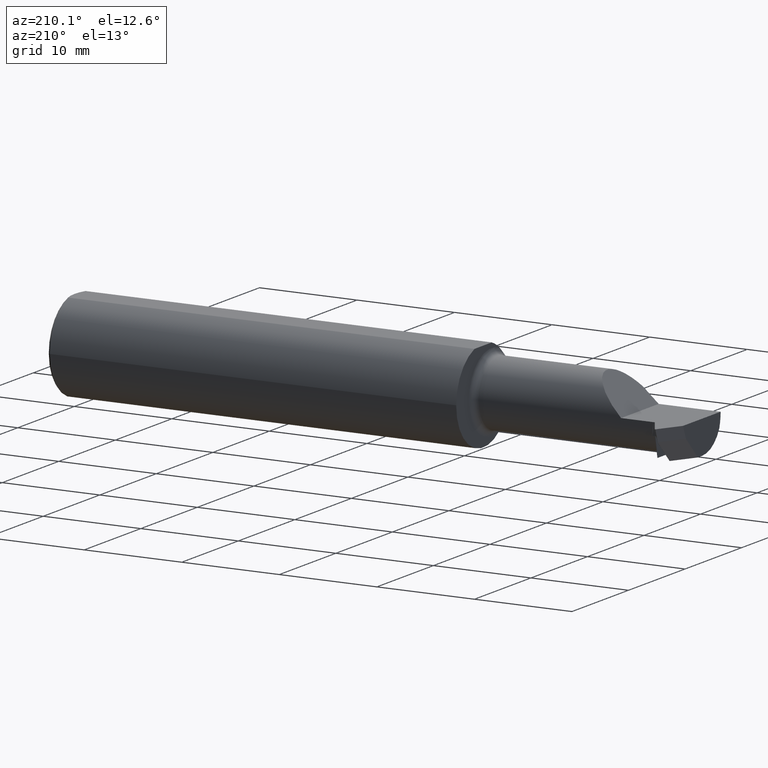
[diagram: clean part render]
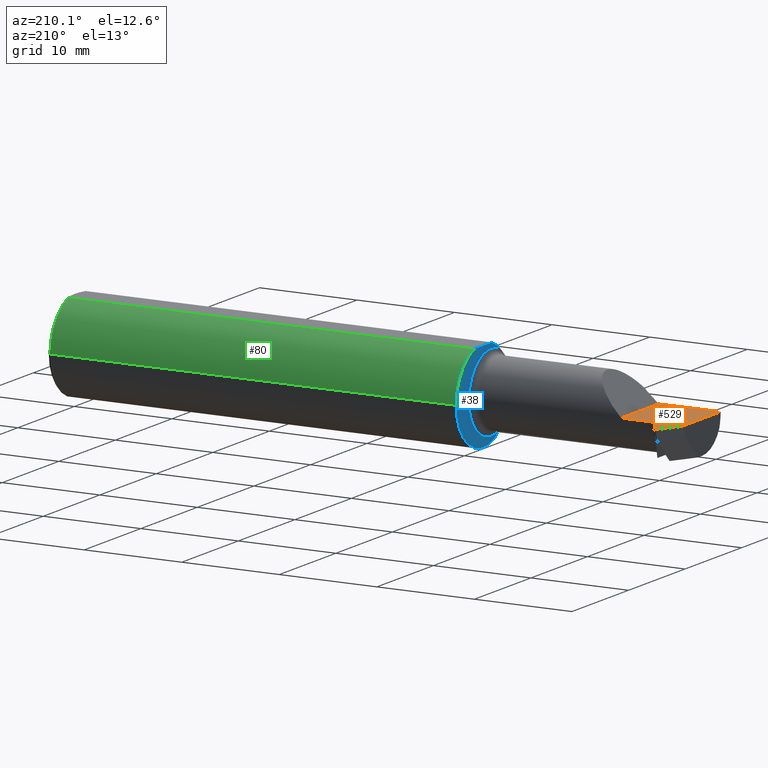
[diagram: same view with three faces highlighted in distinct colors, each labeled with its STEP entity id]
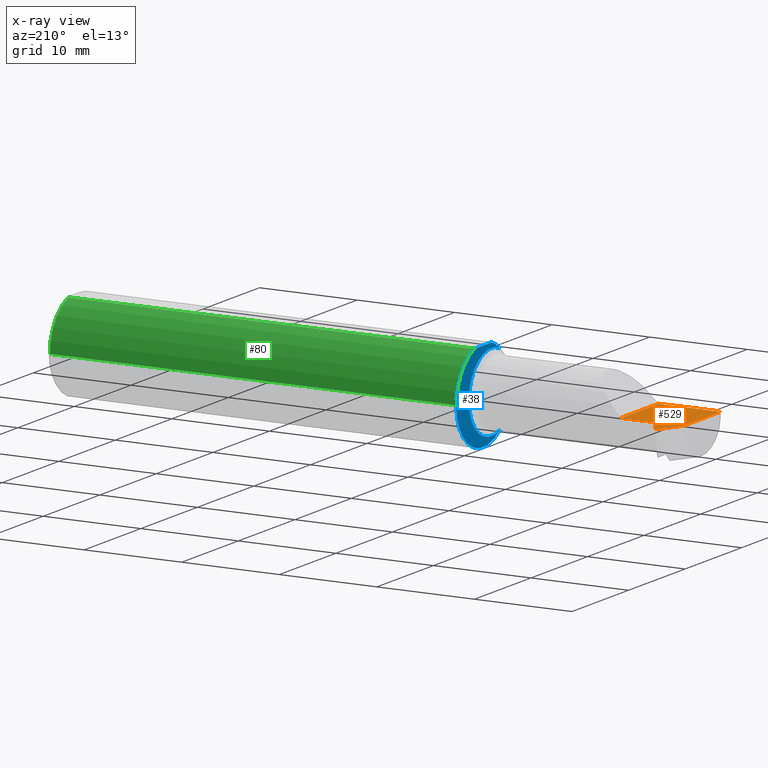
[diagram: x-ray of the same camera — body ghosted, the three highlighted faces saturated]
A machine part, auxiliary view with three faces highlighted in distinct colors.
The next image is the same camera in x-ray (body ghosted, the three faces saturated) — at least one of them is partly hidden behind the body in this view.
Their STEP definitions:

[orange] entity #529 — the highlighted planar face has unit normal (0, 0, -1).
#6 = EDGE_CURVE ( 'NONE', #163, #86, #373, .T. ) ;
#47 = ORIENTED_EDGE ( 'NONE', *, *, #548, .T. ) ;
#61 = VERTEX_POINT ( 'NONE', #576 ) ;
#73 = CARTESIAN_POINT ( 'NONE',  ( -2.500000000000000000, 0.07452118017992460930, 0.000000000000000000 ) ) ;
#86 = VERTEX_POINT ( 'NONE', #248 ) ;
#105 = LINE ( 'NONE', #642, #839 ) ;
#113 = CARTESIAN_POINT ( 'NONE',  ( -2.500000000000000000, -0.1873499999999998500, 0.000000000000000000 ) ) ;
#116 = DIRECTION ( 'NONE',  ( 1.000000000000000000, -9.108622265535208572E-17, 0.000000000000000000 ) ) ;
#129 = CARTESIAN_POINT ( 'NONE',  ( -2.386074374157794775, 0.07464999999999998026, 0.000000000000000000 ) ) ;
#143 = LINE ( 'NONE', #233, #768 ) ;
#154 = DIRECTION ( 'NONE',  ( 0.000000000000000000, 0.000000000000000000, -1.000000000000000000 ) ) ;
#163 = VERTEX_POINT ( 'NONE', #192 ) ;
#185 = ORIENTED_EDGE ( 'NONE', *, *, #211, .F. ) ;
#192 = CARTESIAN_POINT ( 'NONE',  ( -2.500000000000000000, -0.1873499999999998777, 0.000000000000000000 ) ) ;
#196 = DIRECTION ( 'NONE',  ( 0.5000000000000034417, -0.8660254037844365982, 0.000000000000000000 ) ) ;
#211 = EDGE_CURVE ( 'NONE', #344, #269, #545, .T. ) ;
#223 = FACE_OUTER_BOUND ( 'NONE', #552, .T. ) ;
#233 = CARTESIAN_POINT ( 'NONE',  ( -5.098311318176956023E-16, 0.07465000000001625891, 0.000000000000000000 ) ) ;
#235 = DIRECTION ( 'NONE',  ( 1.224646799147352961E-16, -1.000000000000000000, 0.000000000000000000 ) ) ;
#248 = CARTESIAN_POINT ( 'NONE',  ( -2.250000000000000000, -0.1873499999999998222, 0.000000000000000000 ) ) ;
#267 = CARTESIAN_POINT ( 'NONE',  ( -1.757231382422083765, -1.014538011669857687, 0.000000000000000000 ) ) ;
#269 = VERTEX_POINT ( 'NONE', #414 ) ;
#276 = VECTOR ( 'NONE', #865, 39.37007874015748143 ) ;
#281 = VECTOR ( 'NONE', #235, 39.37007874015748143 ) ;
#285 = ORIENTED_EDGE ( 'NONE', *, *, #426, .F. ) ;
#307 = VECTOR ( 'NONE', #196, 39.37007874015748143 ) ;
#344 = VERTEX_POINT ( 'NONE', #73 ) ;
#356 = EDGE_CURVE ( 'NONE', #86, #828, #615, .T. ) ;
#363 = EDGE_CURVE ( 'NONE', #471, #828, #609, .T. ) ;
#372 = LINE ( 'NONE', #846, #281 ) ;
#373 = LINE ( 'NONE', #113, #703 ) ;
#395 = DIRECTION ( 'NONE',  ( 1.000000000000000000, -9.108622265535208572E-17, 0.000000000000000000 ) ) ;
#414 = CARTESIAN_POINT ( 'NONE',  ( -2.444500000000000117, 0.1706500000000001349, 0.000000000000000000 ) ) ;
#415 = CARTESIAN_POINT ( 'NONE',  ( -2.500000000000000000, 0.07465000000000017455, 0.000000000000000000 ) ) ;
#425 = VECTOR ( 'NONE', #464, 39.37007874015748143 ) ;
#426 = EDGE_CURVE ( 'NONE', #725, #471, #143, .T. ) ;
#433 = ORIENTED_EDGE ( 'NONE', *, *, #363, .F. ) ;
#460 = ORIENTED_EDGE ( 'NONE', *, *, #834, .F. ) ;
#464 = DIRECTION ( 'NONE',  ( -0.000000000000000000, 1.000000000000000000, -0.000000000000000000 ) ) ;
#471 = VERTEX_POINT ( 'NONE', #635 ) ;
#497 = PLANE ( 'NONE',  #752 ) ;
#507 = ORIENTED_EDGE ( 'NONE', *, *, #585, .F. ) ;
#529 = ADVANCED_FACE ( 'NONE', ( #223 ), #497, .F. ) ;
#545 = LINE ( 'NONE', #819, #276 ) ;
#548 = EDGE_CURVE ( 'NONE', #344, #163, #372, .T. ) ;
#549 = CARTESIAN_POINT ( 'NONE',  ( -2.250000000000000000, 0.07465000000000018843, 0.000000000000000000 ) ) ;
#552 = EDGE_LOOP ( 'NONE', ( #507, #185, #47, #619, #606, #433, #285, #460 ) ) ;
#576 = CARTESIAN_POINT ( 'NONE',  ( -2.441499999999999115, 0.1706500000000001904, 0.000000000000000000 ) ) ;
#585 = EDGE_CURVE ( 'NONE', #269, #61, #105, .T. ) ;
#606 = ORIENTED_EDGE ( 'NONE', *, *, #356, .T. ) ;
#609 = LINE ( 'NONE', #415, #795 ) ;
#615 = LINE ( 'NONE', #662, #425 ) ;
#619 = ORIENTED_EDGE ( 'NONE', *, *, #6, .T. ) ;
#625 = DIRECTION ( 'NONE',  ( 1.000000000000000000, 6.829619984160543070E-15, 0.000000000000000000 ) ) ;
#635 = CARTESIAN_POINT ( 'NONE',  ( -2.381074374157795326, 0.07464999999999998026, 0.000000000000000000 ) ) ;
#642 = CARTESIAN_POINT ( 'NONE',  ( -2.500000000000000000, 0.1706500000000001072, 0.000000000000000000 ) ) ;
#643 = DIRECTION ( 'NONE',  ( 1.000000000000000000, 1.224646799147352961E-16, -0.000000000000000000 ) ) ;
#662 = CARTESIAN_POINT ( 'NONE',  ( -2.250000000000000000, -0.2500000000000000000, 0.000000000000000000 ) ) ;
#695 = DIRECTION ( 'NONE',  ( -1.000000000000000000, 0.000000000000000000, -0.000000000000000000 ) ) ;
#703 = VECTOR ( 'NONE', #643, 39.37007874015748143 ) ;
#725 = VERTEX_POINT ( 'NONE', #129 ) ;
#752 = AXIS2_PLACEMENT_3D ( 'NONE', #767, #154, #695 ) ;
#767 = CARTESIAN_POINT ( 'NONE',  ( -2.500000000000000000, -0.2500000000000000000, 0.000000000000000000 ) ) ;
#768 = VECTOR ( 'NONE', #625, 39.37007874015748143 ) ;
#795 = VECTOR ( 'NONE', #395, 39.37007874015748143 ) ;
#819 = CARTESIAN_POINT ( 'NONE',  ( -1.907268617577931424, 1.101162049775513907, 0.000000000000000000 ) ) ;
#828 = VERTEX_POINT ( 'NONE', #549 ) ;
#834 = EDGE_CURVE ( 'NONE', #61, #725, #872, .T. ) ;
#839 = VECTOR ( 'NONE', #116, 39.37007874015748143 ) ;
#846 = CARTESIAN_POINT ( 'NONE',  ( -2.500000000000000000, 6.123233995736767268E-17, 0.000000000000000000 ) ) ;
#865 = DIRECTION ( 'NONE',  ( 0.4999999999999897304, 0.8660254037844445918, 0.000000000000000000 ) ) ;
#872 = LINE ( 'NONE', #267, #307 ) ;

[blue] entity #38 — the highlighted planar face has unit normal (-1, 0, 0).
#1 = AXIS2_PLACEMENT_3D ( 'NONE', #853, #170, #717 ) ;
#35 = EDGE_CURVE ( 'NONE', #219, #681, #520, .T. ) ;
#38 = ADVANCED_FACE ( 'NONE', ( #854 ), #244, .T. ) ;
#65 = DIRECTION ( 'NONE',  ( 1.000000000000000000, -9.108622265535208572E-17, 0.000000000000000000 ) ) ;
#79 = DIRECTION ( 'NONE',  ( 9.108622265535208572E-17, 1.000000000000000000, 1.608104540654733016E-16 ) ) ;
#103 = EDGE_LOOP ( 'NONE', ( #475, #644, #532, #364, #359 ) ) ;
#110 = DIRECTION ( 'NONE',  ( -9.108622265535208572E-17, -1.000000000000000000, 0.000000000000000000 ) ) ;
#115 = CIRCLE ( 'NONE', #169, 0.1873499999999999055 ) ;
#126 = CARTESIAN_POINT ( 'NONE',  ( -1.650000000000000133, 1.653273178848926620E-16, 0.000000000000000000 ) ) ;
#135 = AXIS2_PLACEMENT_3D ( 'NONE', #728, #714, #586 ) ;
#146 = CARTESIAN_POINT ( 'NONE',  ( -1.650000000000000133, 0.06039039658753678902, 0.1773500000000000909 ) ) ;
#169 = AXIS2_PLACEMENT_3D ( 'NONE', #407, #477, #467 ) ;
#170 = DIRECTION ( 'NONE',  ( 1.000000000000000000, -9.108622265535208572E-17, 0.000000000000000000 ) ) ;
#188 = CARTESIAN_POINT ( 'NONE',  ( -1.650000000000000133, -0.1160303770344974783, 0.1470951192431561860 ) ) ;
#190 = AXIS2_PLACEMENT_3D ( 'NONE', #126, #65, #873 ) ;
#203 = AXIS2_PLACEMENT_3D ( 'NONE', #857, #580, #110 ) ;
#219 = VERTEX_POINT ( 'NONE', #188 ) ;
#230 = EDGE_CURVE ( 'NONE', #681, #649, #577, .T. ) ;
#244 = PLANE ( 'NONE',  #203 ) ;
#252 = CARTESIAN_POINT ( 'NONE',  ( -1.650000000000000133, 0.1873500000000000998, 0.000000000000000000 ) ) ;
#329 = LINE ( 'NONE', #474, #675 ) ;
#337 = EDGE_CURVE ( 'NONE', #435, #874, #329, .T. ) ;
#349 = CARTESIAN_POINT ( 'NONE',  ( -1.650000000000000133, -0.06039039658753631717, 0.1773500000000000909 ) ) ;
#359 = ORIENTED_EDGE ( 'NONE', *, *, #230, .F. ) ;
#364 = ORIENTED_EDGE ( 'NONE', *, *, #558, .F. ) ;
#396 = CIRCLE ( 'NONE', #1, 0.1873499999999999055 ) ;
#407 = CARTESIAN_POINT ( 'NONE',  ( -1.650000000000000133, 1.653273178848926620E-16, 0.000000000000000000 ) ) ;
#435 = VERTEX_POINT ( 'NONE', #349 ) ;
#467 = DIRECTION ( 'NONE',  ( 0.000000000000000000, -1.000000000000000000, -3.552713678800500929E-15 ) ) ;
#474 = CARTESIAN_POINT ( 'NONE',  ( -1.650000000000000133, 0.2123500000000001220, 0.1773500000000001187 ) ) ;
#475 = ORIENTED_EDGE ( 'NONE', *, *, #35, .F. ) ;
#477 = DIRECTION ( 'NONE',  ( 1.000000000000000000, -9.108622265535208572E-17, 0.000000000000000000 ) ) ;
#520 = CIRCLE ( 'NONE', #135, 0.1580000000000003346 ) ;
#532 = ORIENTED_EDGE ( 'NONE', *, *, #337, .T. ) ;
#558 = EDGE_CURVE ( 'NONE', #649, #874, #396, .T. ) ;
#577 = CIRCLE ( 'NONE', #190, 0.1873499999999999055 ) ;
#580 = DIRECTION ( 'NONE',  ( -1.000000000000000000, 9.108622265535208572E-17, 0.000000000000000000 ) ) ;
#586 = DIRECTION ( 'NONE',  ( 0.000000000000000000, -1.000000000000000000, 0.000000000000000000 ) ) ;
#644 = ORIENTED_EDGE ( 'NONE', *, *, #821, .F. ) ;
#649 = VERTEX_POINT ( 'NONE', #252 ) ;
#675 = VECTOR ( 'NONE', #79, 39.37007874015748143 ) ;
#681 = VERTEX_POINT ( 'NONE', #848 ) ;
#714 = DIRECTION ( 'NONE',  ( -1.000000000000000000, 9.108622265535208572E-17, -0.000000000000000000 ) ) ;
#717 = DIRECTION ( 'NONE',  ( 0.000000000000000000, -1.000000000000000000, 0.000000000000000000 ) ) ;
#728 = CARTESIAN_POINT ( 'NONE',  ( -1.650000000000000133, -0.05835000000000011705, 0.000000000000000000 ) ) ;
#821 = EDGE_CURVE ( 'NONE', #435, #219, #115, .T. ) ;
#848 = CARTESIAN_POINT ( 'NONE',  ( -1.650000000000000133, -0.1160303770351312075, -0.1470951192429076904 ) ) ;
#853 = CARTESIAN_POINT ( 'NONE',  ( -1.650000000000000133, 1.653273178848926620E-16, 0.000000000000000000 ) ) ;
#854 = FACE_OUTER_BOUND ( 'NONE', #103, .T. ) ;
#857 = CARTESIAN_POINT ( 'NONE',  ( -1.650000000000000133, 0.1873500000000002941, 0.000000000000000000 ) ) ;
#873 = DIRECTION ( 'NONE',  ( 0.000000000000000000, -1.000000000000000000, 0.000000000000000000 ) ) ;
#874 = VERTEX_POINT ( 'NONE', #146 ) ;

[green] entity #80 — the highlighted cylindrical surface (partial cylindrical patch) has radius 4.7587 mm, axis along (1, 0, -0).
#1 = AXIS2_PLACEMENT_3D ( 'NONE', #853, #170, #717 ) ;
#14 = EDGE_LOOP ( 'NONE', ( #193, #456, #34, #715 ) ) ;
#34 = ORIENTED_EDGE ( 'NONE', *, *, #173, .F. ) ;
#37 = CARTESIAN_POINT ( 'NONE',  ( -2.500000000000000000, 6.123233995736767268E-17, 0.000000000000000000 ) ) ;
#56 = FACE_OUTER_BOUND ( 'NONE', #14, .T. ) ;
#78 = DIRECTION ( 'NONE',  ( -1.000000000000000000, -1.224646799147319927E-16, 0.000000000000000000 ) ) ;
#80 = ADVANCED_FACE ( 'NONE', ( #56 ), #792, .T. ) ;
#121 = DIRECTION ( 'NONE',  ( 1.000000000000000000, 1.224646799147352961E-16, -0.000000000000000000 ) ) ;
#124 = CIRCLE ( 'NONE', #618, 0.1873499999999999055 ) ;
#146 = CARTESIAN_POINT ( 'NONE',  ( -1.650000000000000133, 0.06039039658753678902, 0.1773500000000000909 ) ) ;
#170 = DIRECTION ( 'NONE',  ( 1.000000000000000000, -9.108622265535208572E-17, 0.000000000000000000 ) ) ;
#173 = EDGE_CURVE ( 'NONE', #833, #874, #598, .T. ) ;
#178 = EDGE_CURVE ( 'NONE', #833, #804, #124, .T. ) ;
#193 = ORIENTED_EDGE ( 'NONE', *, *, #313, .F. ) ;
#252 = CARTESIAN_POINT ( 'NONE',  ( -1.650000000000000133, 0.1873500000000000998, 0.000000000000000000 ) ) ;
#257 = DIRECTION ( 'NONE',  ( -1.253099476677463101E-16, 1.000000000000000000, 8.881784197001252323E-16 ) ) ;
#278 = LINE ( 'NONE', #758, #468 ) ;
#312 = DIRECTION ( 'NONE',  ( 0.000000000000000000, 1.000000000000000000, 0.000000000000000000 ) ) ;
#313 = EDGE_CURVE ( 'NONE', #649, #804, #278, .T. ) ;
#396 = CIRCLE ( 'NONE', #1, 0.1873499999999999055 ) ;
#456 = ORIENTED_EDGE ( 'NONE', *, *, #558, .T. ) ;
#468 = VECTOR ( 'NONE', #546, 39.37007874015748143 ) ;
#473 = CARTESIAN_POINT ( 'NONE',  ( -0.009999999999999073866, 3.661693929450587103E-16, 0.000000000000000000 ) ) ;
#546 = DIRECTION ( 'NONE',  ( 1.000000000000000000, 1.224646799147352961E-16, -0.000000000000000000 ) ) ;
#558 = EDGE_CURVE ( 'NONE', #649, #874, #396, .T. ) ;
#598 = LINE ( 'NONE', #741, #746 ) ;
#604 = CARTESIAN_POINT ( 'NONE',  ( -0.009999999999999096417, 0.1873500000000002941, 0.000000000000000000 ) ) ;
#618 = AXIS2_PLACEMENT_3D ( 'NONE', #473, #78, #257 ) ;
#649 = VERTEX_POINT ( 'NONE', #252 ) ;
#715 = ORIENTED_EDGE ( 'NONE', *, *, #178, .T. ) ;
#716 = AXIS2_PLACEMENT_3D ( 'NONE', #37, #121, #312 ) ;
#717 = DIRECTION ( 'NONE',  ( 0.000000000000000000, -1.000000000000000000, 0.000000000000000000 ) ) ;
#734 = CARTESIAN_POINT ( 'NONE',  ( -0.009999999999999073866, 0.06039039658753679596, 0.1773500000000000909 ) ) ;
#741 = CARTESIAN_POINT ( 'NONE',  ( -2.500000000000000000, 0.06039039658753648371, 0.1773500000000000909 ) ) ;
#746 = VECTOR ( 'NONE', #811, 39.37007874015748143 ) ;
#758 = CARTESIAN_POINT ( 'NONE',  ( -2.500000000000000000, 0.1873499999999999888, 0.000000000000000000 ) ) ;
#792 = CYLINDRICAL_SURFACE ( 'NONE', #716, 0.1873499999999999055 ) ;
#804 = VERTEX_POINT ( 'NONE', #604 ) ;
#811 = DIRECTION ( 'NONE',  ( -1.000000000000000000, -1.224646799147352961E-16, 0.000000000000000000 ) ) ;
#833 = VERTEX_POINT ( 'NONE', #734 ) ;
#853 = CARTESIAN_POINT ( 'NONE',  ( -1.650000000000000133, 1.653273178848926620E-16, 0.000000000000000000 ) ) ;
#874 = VERTEX_POINT ( 'NONE', #146 ) ;